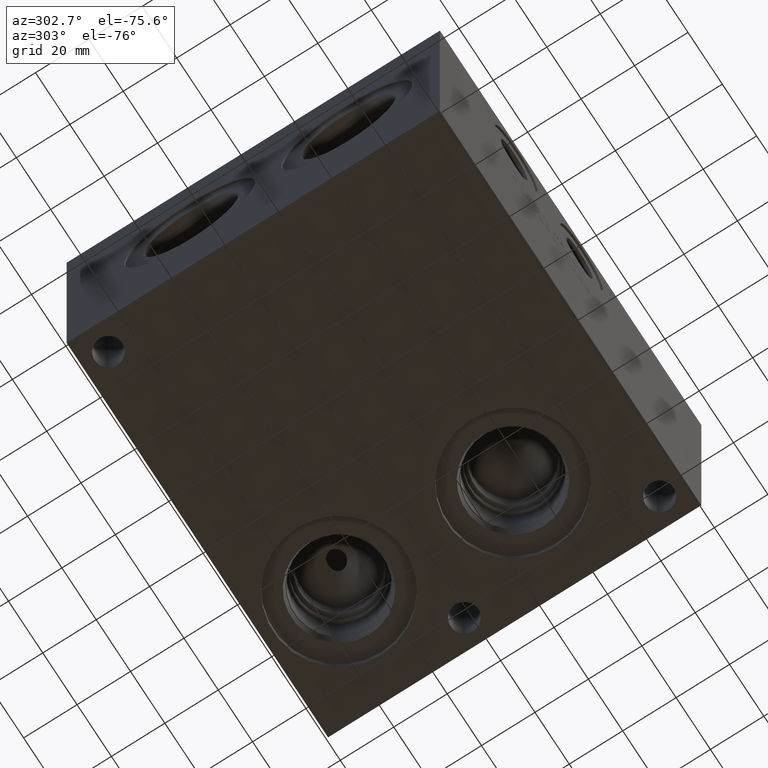
[diagram: clean part render]
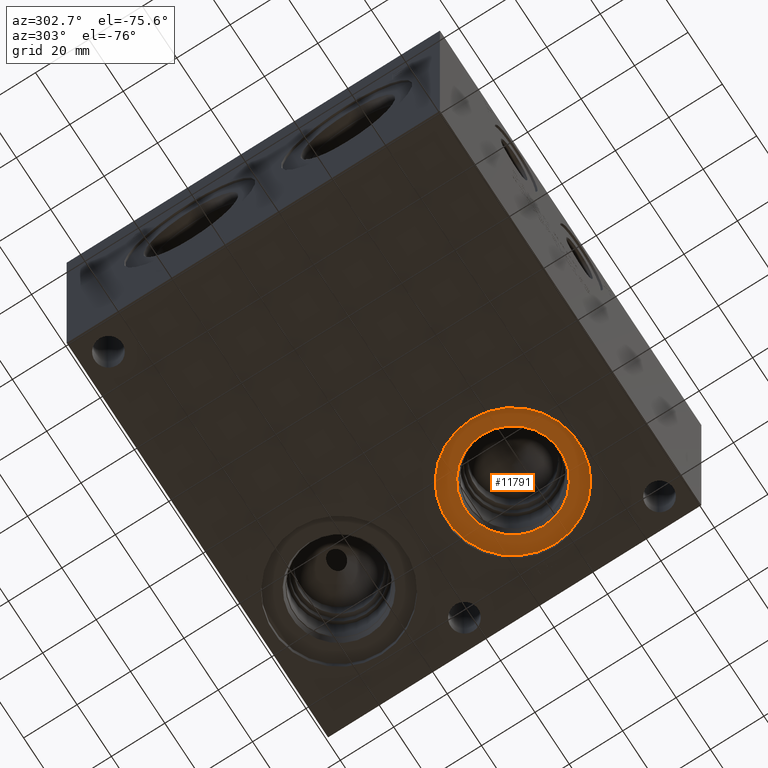
[diagram: same view with one face highlighted and labeled with its STEP entity id]
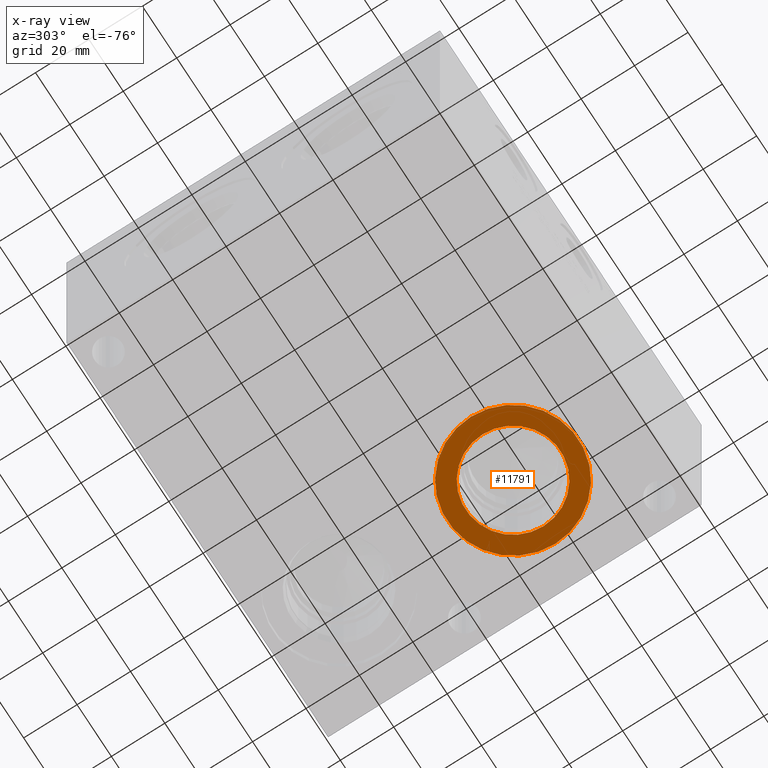
[diagram: x-ray of the same camera — body ghosted, the highlighted face saturated]
A machine part, auxiliary view. The second image highlights one B-rep face of the part: STEP entity #11791.
The next image is the same camera in x-ray: the body ghosted, the highlighted face saturated — about 0% of this face is hidden behind the body in this view.
In plain terms, the highlighted planar face has unit normal (0, 0, 1).
Its self-contained STEP definition (entity closure, byte-faithful):
#185=CIRCLE('',#12319,24.5618);
#186=CIRCLE('',#12320,24.5618);
#187=CIRCLE('',#12322,17.7546);
#188=CIRCLE('',#12323,17.7546);
#472=FACE_BOUND('',#1994,.T.);
#828=PLANE('',#12321);
#1328=FACE_OUTER_BOUND('',#1993,.T.);
#1993=EDGE_LOOP('',(#9996,#9997));
#1994=EDGE_LOOP('',(#9998,#9999));
#5519=VERTEX_POINT('',#19803);
#5520=VERTEX_POINT('',#19805);
#5521=VERTEX_POINT('',#19809);
#5522=VERTEX_POINT('',#19810);
#7081=EDGE_CURVE('',#5519,#5520,#185,.T.);
#7082=EDGE_CURVE('',#5520,#5519,#186,.T.);
#7083=EDGE_CURVE('',#5521,#5522,#187,.T.);
#7084=EDGE_CURVE('',#5522,#5521,#188,.T.);
#9996=ORIENTED_EDGE('',*,*,#7082,.F.);
#9997=ORIENTED_EDGE('',*,*,#7081,.F.);
#9998=ORIENTED_EDGE('',*,*,#7083,.T.);
#9999=ORIENTED_EDGE('',*,*,#7084,.T.);
#11791=ADVANCED_FACE('',(#1328,#472),#828,.F.);
#12319=AXIS2_PLACEMENT_3D('',#19806,#14418,#14419);
#12320=AXIS2_PLACEMENT_3D('',#19807,#14420,#14421);
#12321=AXIS2_PLACEMENT_3D('',#19808,#14422,#14423);
#12322=AXIS2_PLACEMENT_3D('',#19811,#14424,#14425);
#12323=AXIS2_PLACEMENT_3D('',#19812,#14426,#14427);
#14418=DIRECTION('center_axis',(0.,0.,1.));
#14419=DIRECTION('ref_axis',(1.,0.,0.));
#14420=DIRECTION('center_axis',(0.,0.,1.));
#14421=DIRECTION('ref_axis',(1.,0.,0.));
#14422=DIRECTION('center_axis',(0.,0.,1.));
#14423=DIRECTION('ref_axis',(1.,0.,0.));
#14424=DIRECTION('center_axis',(0.,0.,1.));
#14425=DIRECTION('ref_axis',(1.,0.,0.));
#14426=DIRECTION('center_axis',(0.,0.,1.));
#14427=DIRECTION('ref_axis',(1.,0.,0.));
#19803=CARTESIAN_POINT('',(89.7382,46.0248,3.556));
#19805=CARTESIAN_POINT('',(138.8618,46.0248,3.556));
#19806=CARTESIAN_POINT('Origin',(114.3,46.0248,3.556));
#19807=CARTESIAN_POINT('Origin',(114.3,46.0248,3.556));
#19808=CARTESIAN_POINT('Origin',(132.0546,46.0248,3.556));
#19809=CARTESIAN_POINT('',(132.0546,46.0248,3.556));
#19810=CARTESIAN_POINT('',(96.5454,46.0248,3.556));
#19811=CARTESIAN_POINT('Origin',(114.3,46.0248,3.556));
#19812=CARTESIAN_POINT('Origin',(114.3,46.0248,3.556));